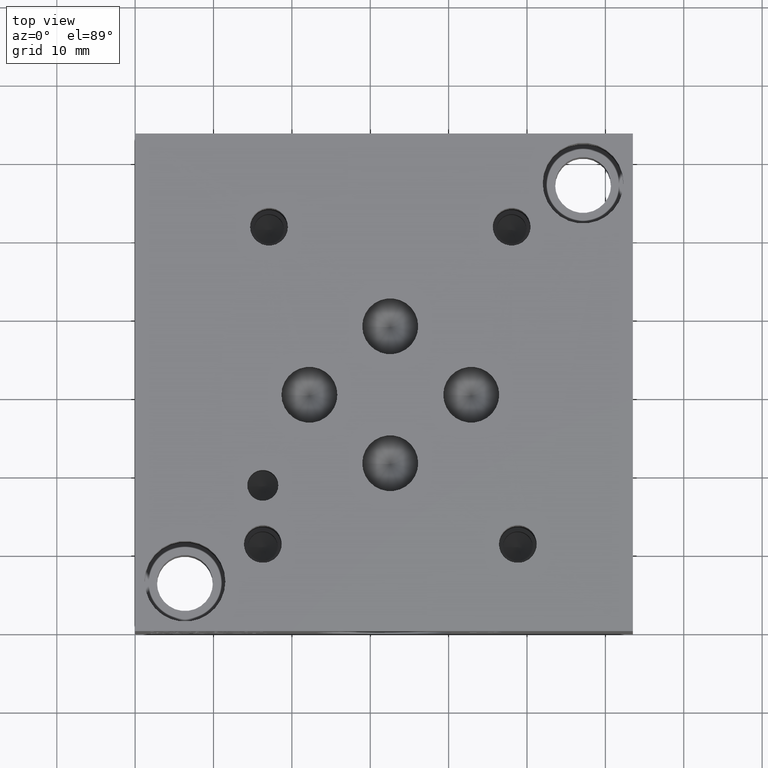
[diagram: clean part render]
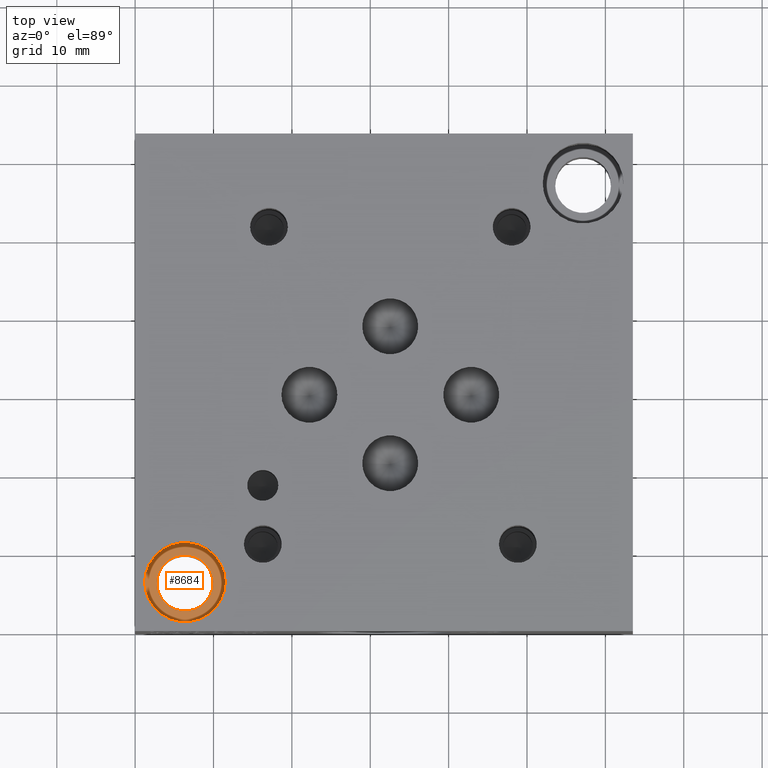
[diagram: same view with one face highlighted and labeled with its STEP entity id]
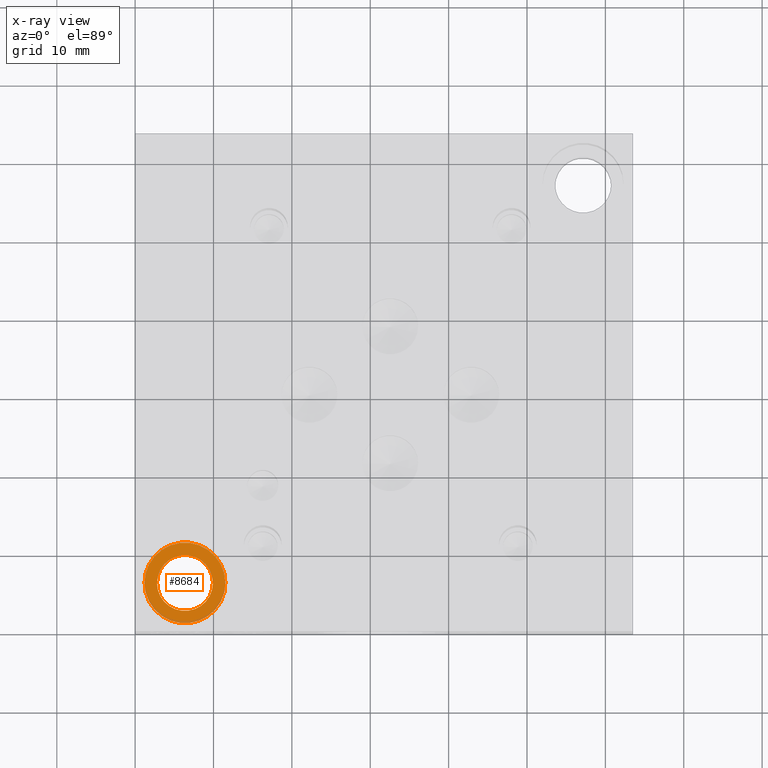
[diagram: x-ray of the same camera — body ghosted, the highlighted face saturated]
A machine part, top view. The second image highlights one B-rep face of the part: STEP entity #8684.
The next image is the same camera in x-ray: the body ghosted, the highlighted face saturated — about 5% of this face is hidden behind the body in this view.
In plain terms, the highlighted planar face has unit normal (0, 0, 1).
Its self-contained STEP definition (entity closure, byte-faithful):
#58=CIRCLE('',#9011,5.1562);
#59=CIRCLE('',#9012,5.1562);
#60=CIRCLE('',#9013,3.5687);
#176=FACE_BOUND('',#1336,.T.);
#453=PLANE('',#9010);
#857=FACE_OUTER_BOUND('',#1335,.T.);
#1335=EDGE_LOOP('',(#7500,#7501));
#1336=EDGE_LOOP('',(#7502));
#4088=VERTEX_POINT('',#14734);
#4089=VERTEX_POINT('',#14735);
#4090=VERTEX_POINT('',#14738);
#5261=EDGE_CURVE('',#4088,#4089,#58,.T.);
#5262=EDGE_CURVE('',#4089,#4088,#59,.T.);
#5263=EDGE_CURVE('',#4090,#4090,#60,.T.);
#7500=ORIENTED_EDGE('',*,*,#5261,.T.);
#7501=ORIENTED_EDGE('',*,*,#5262,.T.);
#7502=ORIENTED_EDGE('',*,*,#5263,.F.);
#8684=ADVANCED_FACE('',(#857,#176),#453,.T.);
#9010=AXIS2_PLACEMENT_3D('',#14733,#10464,#10465);
#9011=AXIS2_PLACEMENT_3D('',#14736,#10466,#10467);
#9012=AXIS2_PLACEMENT_3D('',#14737,#10468,#10469);
#9013=AXIS2_PLACEMENT_3D('',#14739,#10470,#10471);
#10464=DIRECTION('center_axis',(0.,0.,1.));
#10465=DIRECTION('ref_axis',(1.,0.,0.));
#10466=DIRECTION('center_axis',(0.,0.,1.));
#10467=DIRECTION('ref_axis',(1.,0.,0.));
#10468=DIRECTION('center_axis',(0.,0.,1.));
#10469=DIRECTION('ref_axis',(1.,0.,0.));
#10470=DIRECTION('center_axis',(0.,0.,1.));
#10471=DIRECTION('ref_axis',(1.,0.,0.));
#14733=CARTESIAN_POINT('Origin',(6.35,6.35,12.7));
#14734=CARTESIAN_POINT('',(11.5062,6.35,12.7));
#14735=CARTESIAN_POINT('',(1.1938,6.35,12.7));
#14736=CARTESIAN_POINT('Origin',(6.35,6.35,12.7));
#14737=CARTESIAN_POINT('Origin',(6.35,6.35,12.7));
#14738=CARTESIAN_POINT('',(2.7813,6.35,12.7));
#14739=CARTESIAN_POINT('Origin',(6.35,6.35,12.7));